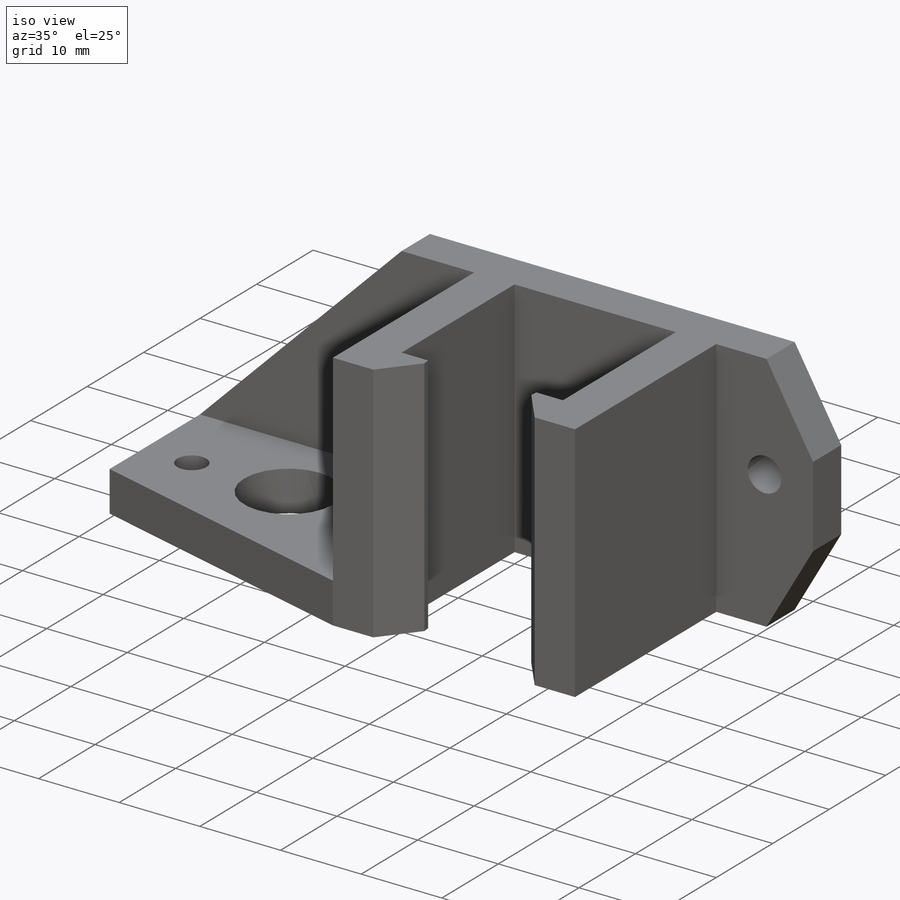
[diagram: iso view]
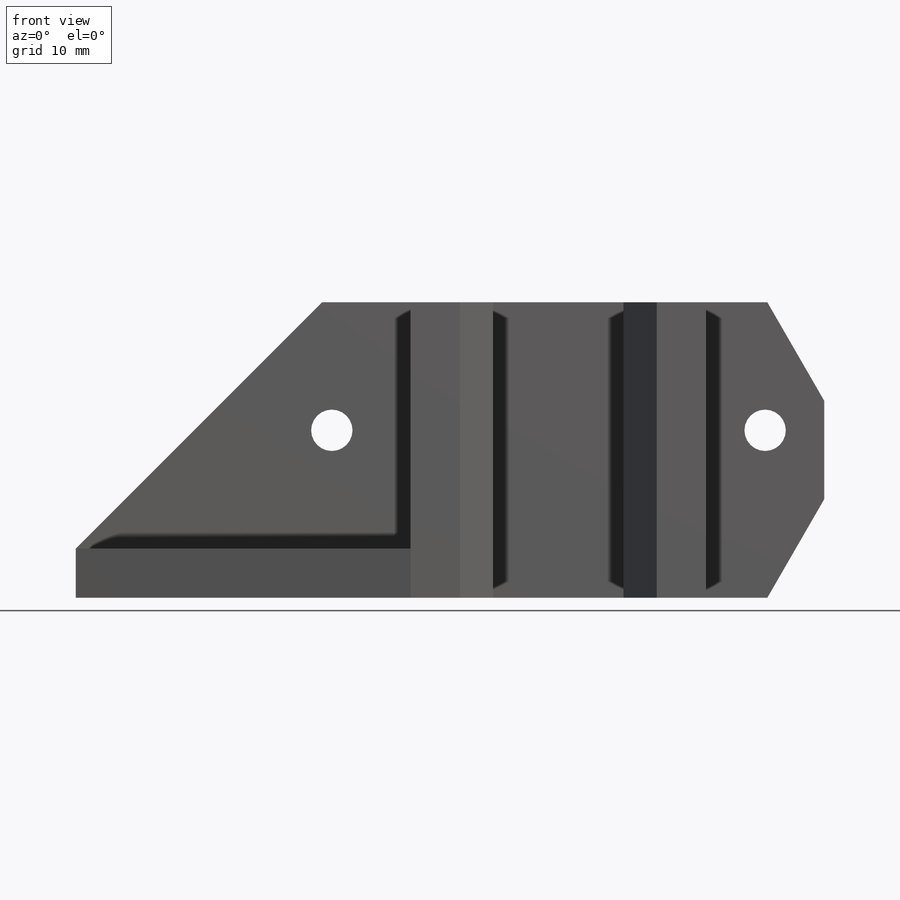
[diagram: front view]
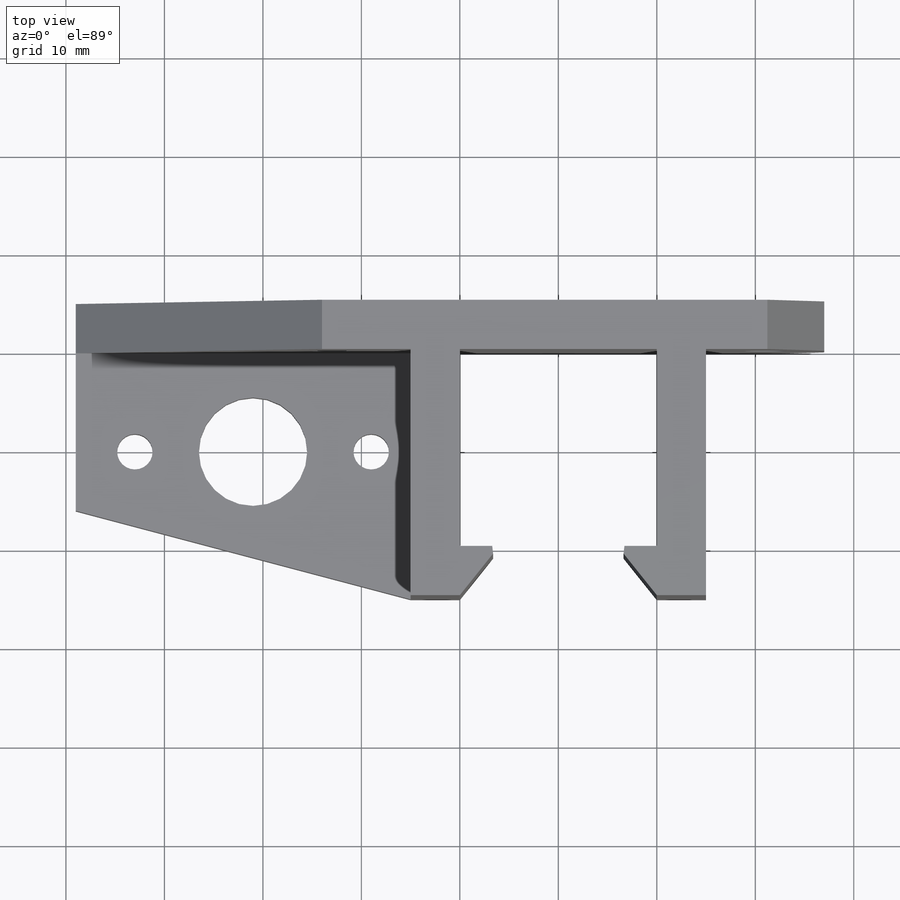
[diagram: top view]
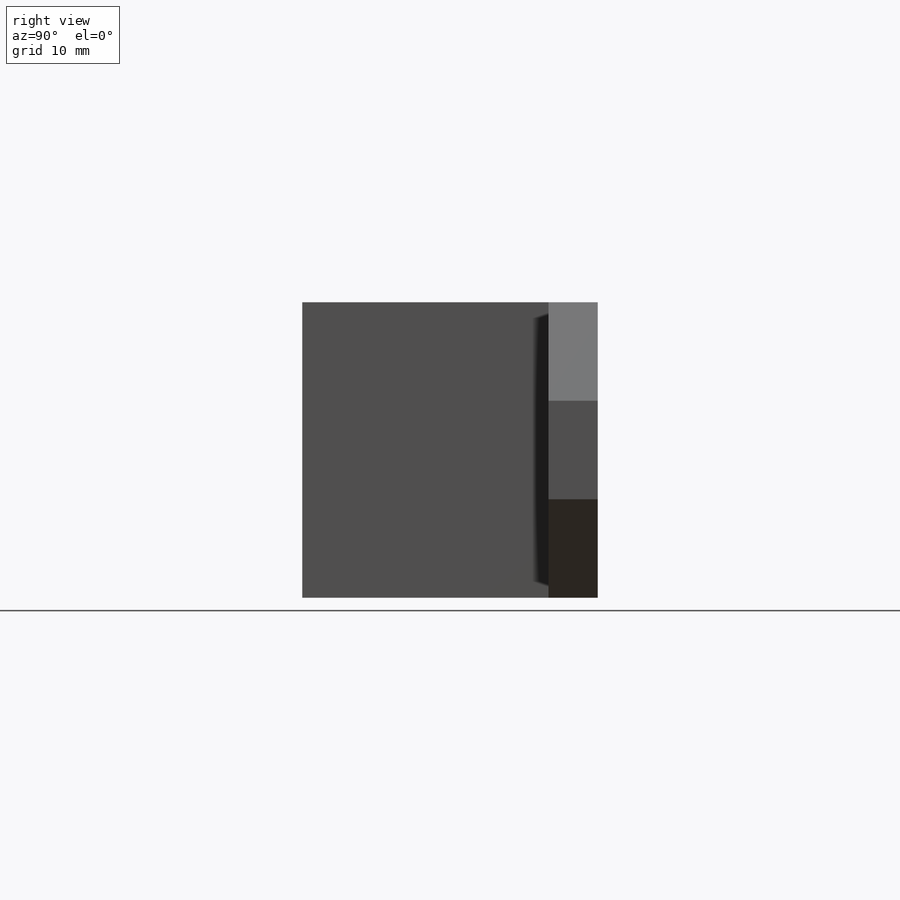
[diagram: right view]
SOLIDWORKS PART (.sldprt)
format: sldprt  version: not decoded by parser v0  size: 289,280 bytes
history: native  units: mm
features: sketch x10, cut_extrude x6, extrude x4, chamfer x3, material x1, move_body x1 (+11 scaffold rows collapsed; 1 parser-record rows omitted)
feature tree (37):
  scaffold x11  (default folders/planes/origin — collapsed)
  material  "Material <not specified>"
  parser-record x1  (decoder bookkeeping rows leaked as tree rows — omitted from the tree; the rows remain in map.json)
  sketch  "Sketch1"  dims[D1=30.0mm D2=30.0mm D3=15.0mm D4=15.0mm]
  extrude  "Boss-Extrude1"  Depth=30mm
  sketch  "Sketch2"  dims[D1=20.0mm D2=20.0mm D3=5.0mm D4=5.0mm]
  cut_extrude  "Cut-Extrude1"  [1 undecoded]
  sketch  "Sketch3"  dims[D1=5.0mm]
  extrude  "Boss-Extrude2"  Depth=40mm
  sketch  "Sketch4"  dims[D2=11.0mm D3=3.6mm D4=3.6mm D1=21.0mm D5=10.0mm D6=10.0mm D7=10.0mm D8=12.0mm D9=12.0mm]
  cut_extrude  "Cut-Extrude2"  [1 undecoded]
  sketch  "Sketch7"  dims[D1=6.0mm D2=6.0mm]
  cut_extrude  "Cut-Extrude3"  [1 undecoded]
  sketch  "Sketch5"  dims[D1=5.0mm]
  extrude  "Boss-Extrude4"  [1 undecoded]
  chamfer  "Chamfer1"  Distance=25mm Angle=45deg
  sketch  "Sketch8"  dims[D1=4.2mm D2=8.0mm D3=13.0mm]
  cut_extrude  "Cut-Extrude4"  [1 undecoded]
  sketch  "Sketch9"  dims[D1=5.0mm]
  extrude  "Boss-Extrude5"  Depth=12mm
  chamfer  "Chamfer2"  Distance=10mm Angle=30deg
  sketch  "Sketch10"  dims[D1=4.2mm D2=13.0mm D3=6.0mm]
  cut_extrude  "Cut-Extrude5"  [1 undecoded]
  move_body  "Body-Move/Copy1"
  sketch  "Sketch11"  dims[D1=20.0mm D2=12.0mm D3=4.0mm]
  cut_extrude  "Cut-Extrude6"  [1 undecoded]
  chamfer  "Chamfer3"  Distance=1mm Angle=45deg
decode coverage: 16 of 24 modeling features carry decoded parameters
note: 7 parameter values undecoded
summary: no parameter record found for 7 features
note: suppression state not decoded; provenance and decode notes live in map.json
